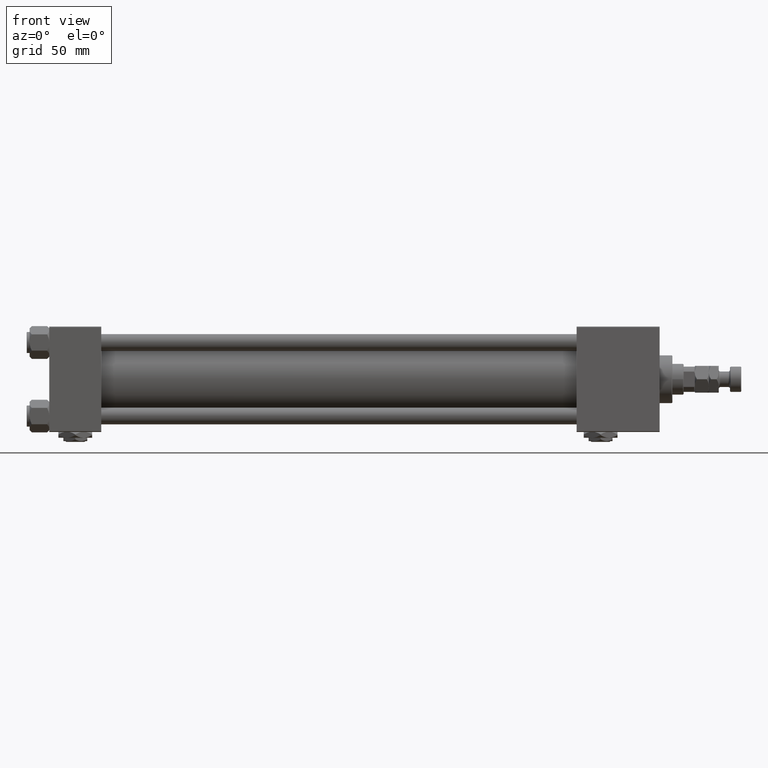
[diagram: clean part render]
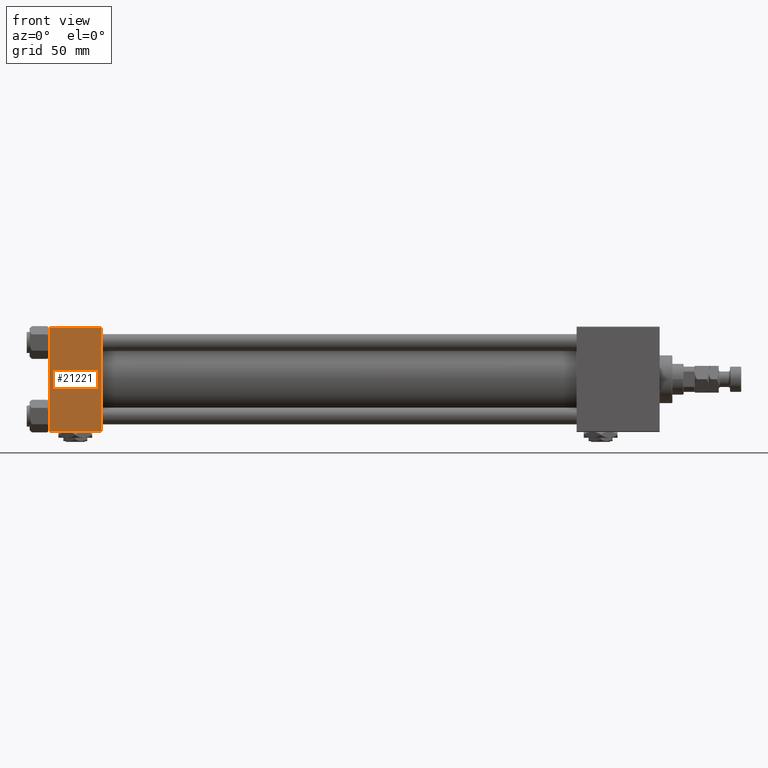
[diagram: same view with one face highlighted and labeled with its STEP entity id]
A machine part, front view. The second image highlights one B-rep face of the part: STEP entity #21221.
In plain terms, the highlighted planar face has unit normal (0, 1, 0).
Its self-contained STEP definition (entity closure, byte-faithful):
#2663 = CARTESIAN_POINT ( 'NONE',  ( 37.00000000000000000, -37.50000000000000000, -37.00000000000003553 ) ) ;
#3005 = CARTESIAN_POINT ( 'NONE',  ( 37.00000000000000000, -37.50000000000000711, 37.49999999999999289 ) ) ;
#4353 = DIRECTION ( 'NONE',  ( 0.000000000000000000, 9.251858538542971581E-17, -1.000000000000000000 ) ) ;
#4892 = CARTESIAN_POINT ( 'NONE',  ( 0.000000000000000000, -37.50000000000000711, 37.49999999999999289 ) ) ;
#6770 = CARTESIAN_POINT ( 'NONE',  ( 37.00000000000000000, -37.50000000000000711, 36.99999999999999289 ) ) ;
#8174 = LINE ( 'NONE', #4892, #37341 ) ;
#10857 = CARTESIAN_POINT ( 'NONE',  ( 0.000000000000000000, -37.50000000000000000, -37.00000000000003553 ) ) ;
#11739 = PLANE ( 'NONE',  #46837 ) ;
#11800 = ORIENTED_EDGE ( 'NONE', *, *, #44229, .T. ) ;
#12749 = CARTESIAN_POINT ( 'NONE',  ( 37.00000000000000000, -37.50000000000000711, 37.49999999999999289 ) ) ;
#19304 = DIRECTION ( 'NONE',  ( 1.000000000000000000, 0.000000000000000000, 0.000000000000000000 ) ) ;
#20677 = LINE ( 'NONE', #12749, #42481 ) ;
#21221 = ADVANCED_FACE ( 'NONE', ( #40442 ), #11739, .F. ) ;
#21457 = VERTEX_POINT ( 'NONE', #6770 ) ;
#22660 = ORIENTED_EDGE ( 'NONE', *, *, #46160, .F. ) ;
#24499 = DIRECTION ( 'NONE',  ( 0.000000000000000000, 9.251858538542971581E-17, -1.000000000000000000 ) ) ;
#30331 = VERTEX_POINT ( 'NONE', #53326 ) ;
#32705 = LINE ( 'NONE', #2663, #38649 ) ;
#36352 = DIRECTION ( 'NONE',  ( 0.000000000000000000, -9.251858538542971581E-17, 1.000000000000000000 ) ) ;
#37341 = VECTOR ( 'NONE', #4353, 1000.000000000000000 ) ;
#38649 = VECTOR ( 'NONE', #19304, 1000.000000000000000 ) ;
#39415 = LINE ( 'NONE', #51186, #39744 ) ;
#39744 = VECTOR ( 'NONE', #51993, 1000.000000000000000 ) ;
#40442 = FACE_OUTER_BOUND ( 'NONE', #50111, .T. ) ;
#41583 = EDGE_CURVE ( 'NONE', #49778, #30331, #32705, .T. ) ;
#42040 = ORIENTED_EDGE ( 'NONE', *, *, #49658, .T. ) ;
#42481 = VECTOR ( 'NONE', #24499, 1000.000000000000000 ) ;
#44084 = ORIENTED_EDGE ( 'NONE', *, *, #41583, .T. ) ;
#44229 = EDGE_CURVE ( 'NONE', #21457, #46936, #39415, .T. ) ;
#46160 = EDGE_CURVE ( 'NONE', #21457, #30331, #20677, .T. ) ;
#46837 = AXIS2_PLACEMENT_3D ( 'NONE', #3005, #53028, #36352 ) ;
#46936 = VERTEX_POINT ( 'NONE', #52037 ) ;
#49658 = EDGE_CURVE ( 'NONE', #46936, #49778, #8174, .T. ) ;
#49778 = VERTEX_POINT ( 'NONE', #10857 ) ;
#50111 = EDGE_LOOP ( 'NONE', ( #42040, #44084, #22660, #11800 ) ) ;
#51186 = CARTESIAN_POINT ( 'NONE',  ( 37.00000000000000000, -37.50000000000000711, 36.99999999999999289 ) ) ;
#51993 = DIRECTION ( 'NONE',  ( -1.000000000000000000, 0.000000000000000000, 0.000000000000000000 ) ) ;
#52037 = CARTESIAN_POINT ( 'NONE',  ( 0.000000000000000000, -37.50000000000000711, 36.99999999999999289 ) ) ;
#53028 = DIRECTION ( 'NONE',  ( -0.000000000000000000, 1.000000000000000000, 9.251858538542971581E-17 ) ) ;
#53326 = CARTESIAN_POINT ( 'NONE',  ( 37.00000000000000000, -37.50000000000000000, -37.00000000000003553 ) ) ;